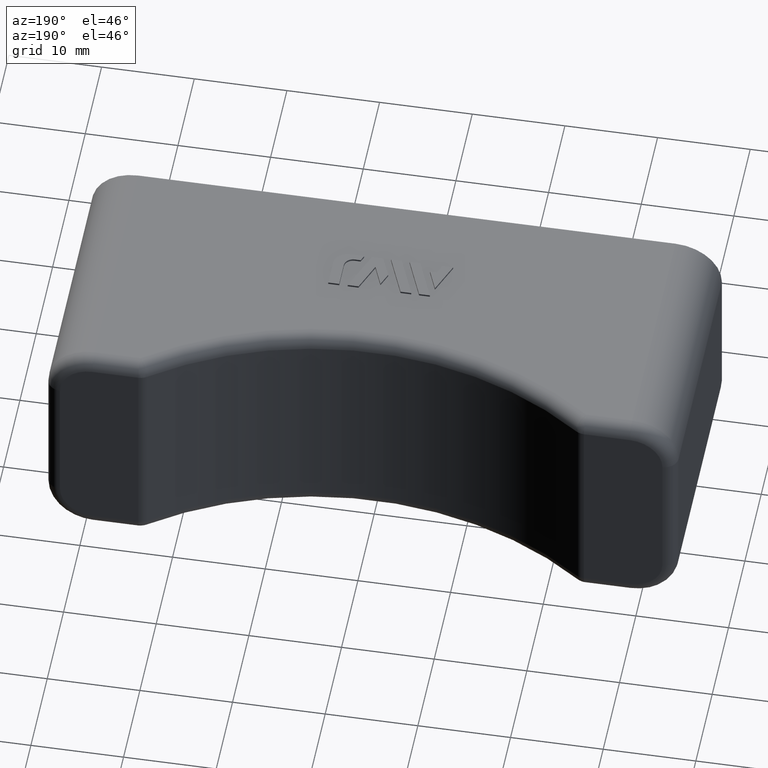
[diagram: clean part render]
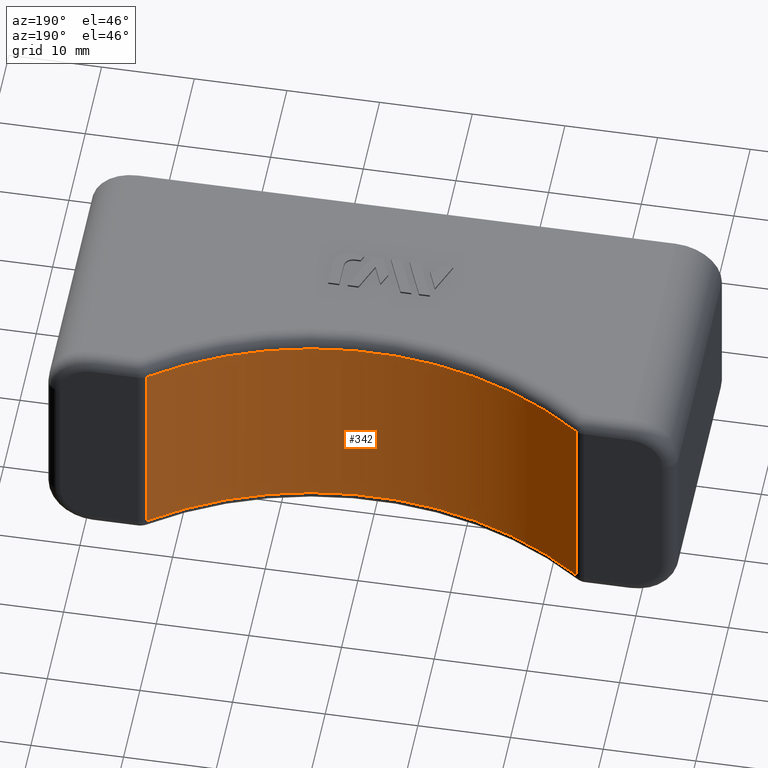
[diagram: same view with one face highlighted and labeled with its STEP entity id]
A machine part, auxiliary view. The second image highlights one B-rep face of the part: STEP entity #342.
In plain terms, the highlighted cylindrical surface (partial cylindrical patch) has radius 38.65 mm, axis along (0, 0, -1).
Its self-contained STEP definition (entity closure, byte-faithful):
#342 = ADVANCED_FACE( '', ( #1058 ), #1059, .F. );
#1058 = FACE_OUTER_BOUND( '', #1900, .T. );
#1059 = CYLINDRICAL_SURFACE( '', #1901, 38.6500000000000 );
#1900 = EDGE_LOOP( '', ( #4372, #4373, #4374, #4375 ) );
#1901 = AXIS2_PLACEMENT_3D( '', #4376, #4377, #4378 );
#4372 = ORIENTED_EDGE( '', *, *, #5669, .T. );
#4373 = ORIENTED_EDGE( '', *, *, #5677, .T. );
#4374 = ORIENTED_EDGE( '', *, *, #6180, .T. );
#4375 = ORIENTED_EDGE( '', *, *, #6181, .T. );
#4376 = CARTESIAN_POINT( '', ( 0.000000000000000, 58.6500000000000, -12.5000000000000 ) );
#4377 = DIRECTION( '', ( 0.000000000000000, 0.000000000000000, -1.00000000000000 ) );
#4378 = DIRECTION( '', ( 0.000000000000000, -1.00000000000000, 0.000000000000000 ) );
#5669 = EDGE_CURVE( '', #6991, #6993, #6995, .T. );
#5677 = EDGE_CURVE( '', #6993, #7004, #7006, .T. );
#6180 = EDGE_CURVE( '', #7004, #7770, #7771, .F. );
#6181 = EDGE_CURVE( '', #7770, #6991, #7772, .F. );
#6991 = VERTEX_POINT( '', #8968 );
#6993 = VERTEX_POINT( '', #8970 );
#6995 = CIRCLE( '', #8972, 38.6500000000000 );
#7004 = VERTEX_POINT( '', #8982 );
#7006 = LINE( '', #8984, #8985 );
#7770 = VERTEX_POINT( '', #10115 );
#7771 = CIRCLE( '', #10116, 38.6500000000000 );
#7772 = LINE( '', #10117, #10118 );
#8968 = CARTESIAN_POINT( '', ( 23.1514443626917, 27.7011207970112, -11.0000000000000 ) );
#8970 = CARTESIAN_POINT( '', ( -23.1514443626917, 27.7011207970112, -11.0000000000000 ) );
#8972 = AXIS2_PLACEMENT_3D( '', #10807, #10808, #10809 );
#8982 = CARTESIAN_POINT( '', ( -23.1514443626917, 27.7011207970112, 11.0000000000000 ) );
#8984 = CARTESIAN_POINT( '', ( -23.1514443626917, 27.7011207970112, -12.5000000000000 ) );
#8985 = VECTOR( '', #10829, 1000.00000000000 );
#10115 = CARTESIAN_POINT( '', ( 23.1514443626917, 27.7011207970112, 11.0000000000000 ) );
#10116 = AXIS2_PLACEMENT_3D( '', #11604, #11605, #11606 );
#10117 = CARTESIAN_POINT( '', ( 23.1514443626917, 27.7011207970112, -12.5000000000000 ) );
#10118 = VECTOR( '', #11607, 1000.00000000000 );
#10807 = CARTESIAN_POINT( '', ( 0.000000000000000, 58.6500000000000, -11.0000000000000 ) );
#10808 = DIRECTION( '', ( 0.000000000000000, 0.000000000000000, -1.00000000000000 ) );
#10809 = DIRECTION( '', ( -1.00000000000000, 0.000000000000000, 0.000000000000000 ) );
#10829 = DIRECTION( '', ( 0.000000000000000, 0.000000000000000, 1.00000000000000 ) );
#11604 = CARTESIAN_POINT( '', ( 0.000000000000000, 58.6500000000000, 11.0000000000000 ) );
#11605 = DIRECTION( '', ( 0.000000000000000, 0.000000000000000, -1.00000000000000 ) );
#11606 = DIRECTION( '', ( -1.00000000000000, 0.000000000000000, 0.000000000000000 ) );
#11607 = DIRECTION( '', ( 0.000000000000000, 0.000000000000000, 1.00000000000000 ) );